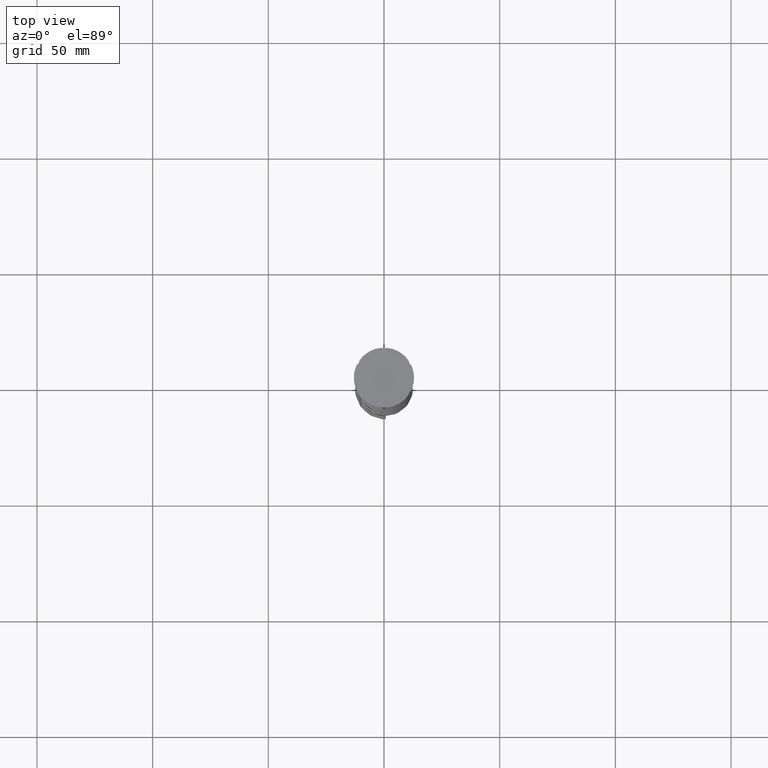
[diagram: clean part render]
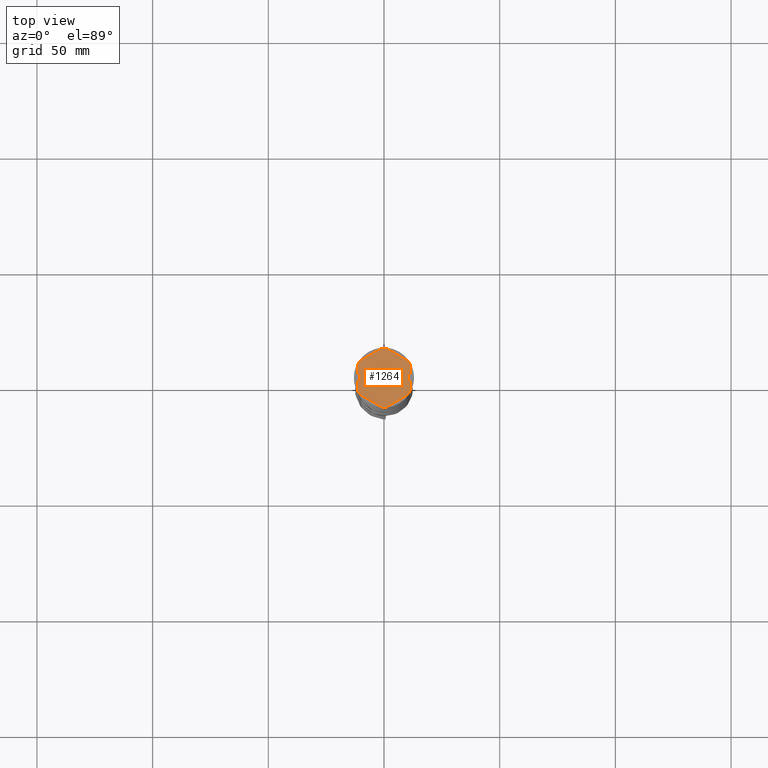
[diagram: same view with one face highlighted and labeled with its STEP entity id]
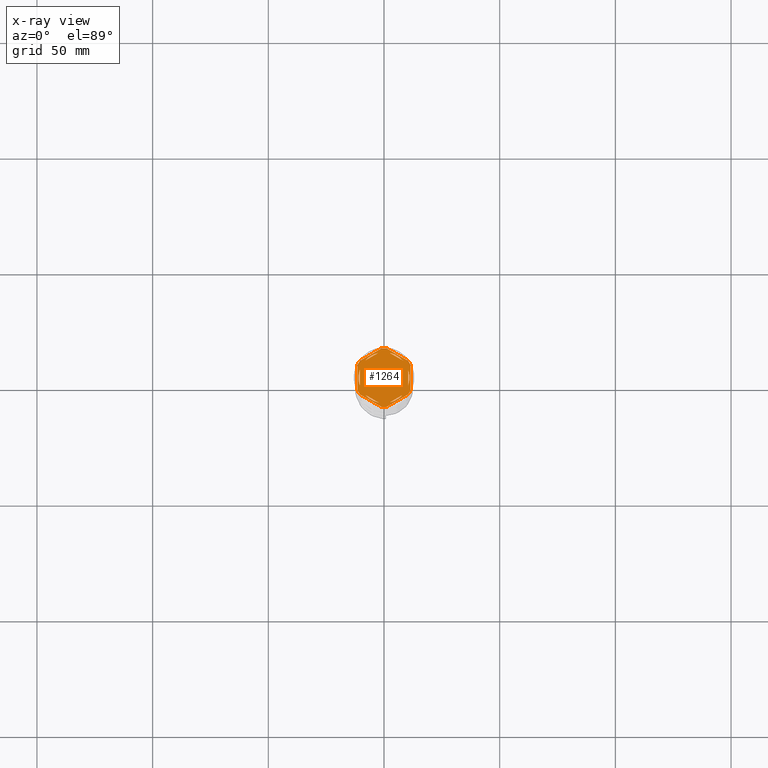
[diagram: x-ray of the same camera — body ghosted, the highlighted face saturated]
A machine part, top view. The second image highlights one B-rep face of the part: STEP entity #1264.
The next image is the same camera in x-ray: the body ghosted, the highlighted face saturated — about 0% of this face is hidden behind the body in this view.
In plain terms, the highlighted planar face has unit normal (0, 0, 1).
Its self-contained STEP definition (entity closure, byte-faithful):
#31 = EDGE_LOOP ( 'NONE', ( #3106, #3212, #1841, #1427, #4323, #4437, #1968, #362, #520, #1990, #393, #3006 ) ) ;
#39 = CARTESIAN_POINT ( 'NONE',  ( 0.000000000000000000, 0.000000000000000000, -1.000000000000000000 ) ) ;
#87 = VECTOR ( 'NONE', #2249, 1000.000000000000000 ) ;
#103 = DIRECTION ( 'NONE',  ( 1.000000000000000000, 0.000000000000000000, 0.000000000000000000 ) ) ;
#151 = CARTESIAN_POINT ( 'NONE',  ( 8.089454172900135021, -7.453907108661109504, -1.000000000000000888 ) ) ;
#167 = ORIENTED_EDGE ( 'NONE', *, *, #3995, .F. ) ;
#200 = LINE ( 'NONE', #949, #1636 ) ;
#222 = CARTESIAN_POINT ( 'NONE',  ( -11.50000000000000000, 6.639528095680691244, -1.000000000000000000 ) ) ;
#235 = CARTESIAN_POINT ( 'NONE',  ( -11.00000000000000000, 0.000000000000000000, -1.000000000000000000 ) ) ;
#237 = VERTEX_POINT ( 'NONE', #1177 ) ;
#239 = EDGE_LOOP ( 'NONE', ( #4219, #4056 ) ) ;
#268 = VERTEX_POINT ( 'NONE', #2385 ) ;
#272 = DIRECTION ( 'NONE',  ( -0.8660254037844387076, -0.4999999999999999445, 0.000000000000000000 ) ) ;
#292 = VERTEX_POINT ( 'NONE', #908 ) ;
#328 = EDGE_CURVE ( 'NONE', #3131, #1717, #2726, .T. ) ;
#336 = VERTEX_POINT ( 'NONE', #2293 ) ;
#338 = AXIS2_PLACEMENT_3D ( 'NONE', #3657, #543, #3912 ) ;
#343 = LINE ( 'NONE', #1724, #1858 ) ;
#348 = AXIS2_PLACEMENT_3D ( 'NONE', #813, #1898, #1825 ) ;
#351 = AXIS2_PLACEMENT_3D ( 'NONE', #2877, #3564, #2147 ) ;
#362 = ORIENTED_EDGE ( 'NONE', *, *, #1473, .F. ) ;
#364 = EDGE_CURVE ( 'NONE', #3429, #1283, #3401, .T. ) ;
#393 = ORIENTED_EDGE ( 'NONE', *, *, #450, .T. ) ;
#433 = CARTESIAN_POINT ( 'NONE',  ( 2.410545827099861871, 10.73262637081210791, -1.000000000000000888 ) ) ;
#440 = CARTESIAN_POINT ( 'NONE',  ( -2.410545827099867200, 10.73262637081210613, -1.000000000000000888 ) ) ;
#450 = EDGE_CURVE ( 'NONE', #3408, #1642, #3049, .T. ) ;
#476 = AXIS2_PLACEMENT_3D ( 'NONE', #508, #874, #1839 ) ;
#478 = CIRCLE ( 'NONE', #4487, 12.69999999999999929 ) ;
#497 = CARTESIAN_POINT ( 'NONE',  ( 10.41690475583121867, -7.264853426459537467, -1.000000000000000000 ) ) ;
#508 = CARTESIAN_POINT ( 'NONE',  ( 0.000000000000000000, 0.000000000000000000, -1.000000000000000000 ) ) ;
#515 = DIRECTION ( 'NONE',  ( 1.306360520641008153E-16, 1.000000000000000000, 0.000000000000000000 ) ) ;
#520 = ORIENTED_EDGE ( 'NONE', *, *, #1176, .T. ) ;
#543 = DIRECTION ( 'NONE',  ( -0.000000000000000000, -0.000000000000000000, -1.000000000000000000 ) ) ;
#555 = EDGE_LOOP ( 'NONE', ( #580, #2738 ) ) ;
#580 = ORIENTED_EDGE ( 'NONE', *, *, #1505, .F. ) ;
#595 = CARTESIAN_POINT ( 'NONE',  ( 0.000000000000000000, 0.000000000000000000, -1.000000000000000000 ) ) ;
#604 = CARTESIAN_POINT ( 'NONE',  ( 0.000000000000000000, 0.000000000000000000, -1.000000000000000000 ) ) ;
#618 = CARTESIAN_POINT ( 'NONE',  ( 0.000000000000000000, 0.000000000000000000, -1.000000000000000000 ) ) ;
#645 = CIRCLE ( 'NONE', #2958, 12.69999999999999929 ) ;
#670 = CARTESIAN_POINT ( 'NONE',  ( 0.000000000000000000, 0.000000000000000000, -1.000000000000000000 ) ) ;
#731 = DIRECTION ( 'NONE',  ( 0.8660254037844385966, 0.4999999999999999445, 0.000000000000000000 ) ) ;
#770 = DIRECTION ( 'NONE',  ( 0.000000000000000000, 0.000000000000000000, 1.000000000000000000 ) ) ;
#809 = CARTESIAN_POINT ( 'NONE',  ( 0.000000000000000000, 0.000000000000000000, -1.000000000000000000 ) ) ;
#813 = CARTESIAN_POINT ( 'NONE',  ( 0.000000000000000000, 0.000000000000000000, -1.000000000000000000 ) ) ;
#826 = EDGE_CURVE ( 'NONE', #1540, #1642, #1843, .T. ) ;
#844 = AXIS2_PLACEMENT_3D ( 'NONE', #39, #3523, #103 ) ;
#854 = FACE_BOUND ( 'NONE', #1821, .T. ) ;
#874 = DIRECTION ( 'NONE',  ( 0.000000000000000000, 0.000000000000000000, 1.000000000000000000 ) ) ;
#908 = CARTESIAN_POINT ( 'NONE',  ( -11.50000000000000000, -5.388877434122992582, -1.000000000000000000 ) ) ;
#922 = AXIS2_PLACEMENT_3D ( 'NONE', #618, #1651, #2334 ) ;
#937 = EDGE_CURVE ( 'NONE', #3408, #2811, #985, .T. ) ;
#939 = CARTESIAN_POINT ( 'NONE',  ( -2.410545827099876082, -10.73262637081210435, -1.000000000000000888 ) ) ;
#949 = CARTESIAN_POINT ( 'NONE',  ( -2.602085213965210642E-15, -12.12435565298214080, -1.000000000000000888 ) ) ;
#984 = VECTOR ( 'NONE', #3094, 999.9999999999998863 ) ;
#985 = CIRCLE ( 'NONE', #3239, 12.69999999999999929 ) ;
#991 = AXIS2_PLACEMENT_3D ( 'NONE', #670, #770, #2150 ) ;
#1030 = VERTEX_POINT ( 'NONE', #3271 ) ;
#1067 = DIRECTION ( 'NONE',  ( -0.8660254037844385966, -0.5000000000000001110, 0.000000000000000000 ) ) ;
#1073 = EDGE_CURVE ( 'NONE', #3703, #292, #2991, .T. ) ;
#1085 = EDGE_LOOP ( 'NONE', ( #2230, #4298 ) ) ;
#1094 = VECTOR ( 'NONE', #1067, 1000.000000000000114 ) ;
#1135 = AXIS2_PLACEMENT_3D ( 'NONE', #2554, #3910, #2148 ) ;
#1170 = CARTESIAN_POINT ( 'NONE',  ( -10.49999999999999822, 3.278719262151000624, -1.000000000000000888 ) ) ;
#1176 = EDGE_CURVE ( 'NONE', #3412, #2811, #3946, .T. ) ;
#1177 = CARTESIAN_POINT ( 'NONE',  ( -10.49999999999999822, -3.278719262151000624, -1.000000000000000888 ) ) ;
#1186 = FACE_BOUND ( 'NONE', #4101, .T. ) ;
#1204 = CARTESIAN_POINT ( 'NONE',  ( -10.49999999999999822, 6.062177826491068622, -1.000000000000000888 ) ) ;
#1264 = ADVANCED_FACE ( 'NONE', ( #2596, #1186, #3604, #2525, #854, #1542, #2939 ), #3625, .T. ) ;
#1280 = CARTESIAN_POINT ( 'NONE',  ( 1.083095244168781557, 12.65373086058254160, -1.000000000000000000 ) ) ;
#1283 = VERTEX_POINT ( 'NONE', #440 ) ;
#1284 = CIRCLE ( 'NONE', #348, 11.00000000000000000 ) ;
#1340 = CARTESIAN_POINT ( 'NONE',  ( 11.49999999999999822, -5.388877434122996135, -1.000000000000000000 ) ) ;
#1350 = VECTOR ( 'NONE', #3970, 1000.000000000000227 ) ;
#1354 = CIRCLE ( 'NONE', #922, 12.69999999999999929 ) ;
#1358 = CIRCLE ( 'NONE', #1940, 11.00000000000000000 ) ;
#1394 = CIRCLE ( 'NONE', #3655, 11.00000000000000000 ) ;
#1414 = AXIS2_PLACEMENT_3D ( 'NONE', #2170, #3448, #1826 ) ;
#1427 = ORIENTED_EDGE ( 'NONE', *, *, #4291, .F. ) ;
#1452 = EDGE_CURVE ( 'NONE', #3011, #237, #3602, .T. ) ;
#1473 = EDGE_CURVE ( 'NONE', #3412, #292, #1633, .T. ) ;
#1505 = EDGE_CURVE ( 'NONE', #1717, #3131, #2006, .T. ) ;
#1526 = LINE ( 'NONE', #3199, #3830 ) ;
#1528 = DIRECTION ( 'NONE',  ( -0.000000000000000000, -0.000000000000000000, -1.000000000000000000 ) ) ;
#1540 = VERTEX_POINT ( 'NONE', #1340 ) ;
#1542 = FACE_BOUND ( 'NONE', #3294, .T. ) ;
#1551 = VECTOR ( 'NONE', #4027, 1000.000000000000000 ) ;
#1633 = CIRCLE ( 'NONE', #1414, 12.69999999999999929 ) ;
#1636 = VECTOR ( 'NONE', #272, 999.9999999999998863 ) ;
#1642 = VERTEX_POINT ( 'NONE', #497 ) ;
#1651 = DIRECTION ( 'NONE',  ( -0.000000000000000000, -0.000000000000000000, -1.000000000000000000 ) ) ;
#1699 = CARTESIAN_POINT ( 'NONE',  ( 2.410545827099865868, -10.73262637081210791, -1.000000000000000888 ) ) ;
#1717 = VERTEX_POINT ( 'NONE', #3278 ) ;
#1724 = CARTESIAN_POINT ( 'NONE',  ( 10.49999999999999289, -6.062177826491073063, -1.000000000000000888 ) ) ;
#1734 = DIRECTION ( 'NONE',  ( 1.000000000000000000, 0.000000000000000000, 0.000000000000000000 ) ) ;
#1775 = VERTEX_POINT ( 'NONE', #3932 ) ;
#1820 = DIRECTION ( 'NONE',  ( 1.000000000000000000, 0.000000000000000000, 0.000000000000000000 ) ) ;
#1821 = EDGE_LOOP ( 'NONE', ( #3578, #3435, #4398 ) ) ;
#1825 = DIRECTION ( 'NONE',  ( 1.000000000000000000, 0.000000000000000000, 0.000000000000000000 ) ) ;
#1826 = DIRECTION ( 'NONE',  ( 1.000000000000000000, 7.105427357601001859E-15, 0.000000000000000000 ) ) ;
#1839 = DIRECTION ( 'NONE',  ( 1.000000000000000000, 0.000000000000000000, -0.000000000000000000 ) ) ;
#1841 = ORIENTED_EDGE ( 'NONE', *, *, #4183, .T. ) ;
#1843 = CIRCLE ( 'NONE', #338, 12.69999999999999929 ) ;
#1844 = EDGE_CURVE ( 'NONE', #3703, #1775, #1354, .T. ) ;
#1847 = DIRECTION ( 'NONE',  ( -0.8660254037844388186, 0.4999999999999997224, 0.000000000000000000 ) ) ;
#1858 = VECTOR ( 'NONE', #3116, 1000.000000000000000 ) ;
#1898 = DIRECTION ( 'NONE',  ( 0.000000000000000000, 0.000000000000000000, 1.000000000000000000 ) ) ;
#1940 = AXIS2_PLACEMENT_3D ( 'NONE', #2764, #4152, #1734 ) ;
#1947 = CARTESIAN_POINT ( 'NONE',  ( -1.083095244168783333, 12.65373086058254160, -1.000000000000000000 ) ) ;
#1968 = ORIENTED_EDGE ( 'NONE', *, *, #1073, .T. ) ;
#1990 = ORIENTED_EDGE ( 'NONE', *, *, #937, .F. ) ;
#2006 = CIRCLE ( 'NONE', #844, 11.00000000000000000 ) ;
#2025 = CARTESIAN_POINT ( 'NONE',  ( 10.49999999999999467, 6.062177826491072175, -1.000000000000000888 ) ) ;
#2041 = CARTESIAN_POINT ( 'NONE',  ( -8.089454172900135021, 7.453907108661106840, -1.000000000000000888 ) ) ;
#2147 = DIRECTION ( 'NONE',  ( 1.000000000000000000, 0.000000000000000000, 0.000000000000000000 ) ) ;
#2148 = DIRECTION ( 'NONE',  ( 1.000000000000000000, 0.000000000000000000, 0.000000000000000000 ) ) ;
#2150 = DIRECTION ( 'NONE',  ( 1.000000000000000000, 0.000000000000000000, 0.000000000000000000 ) ) ;
#2163 = VERTEX_POINT ( 'NONE', #1280 ) ;
#2170 = CARTESIAN_POINT ( 'NONE',  ( 0.000000000000000000, 0.000000000000000000, -1.000000000000000000 ) ) ;
#2203 = VERTEX_POINT ( 'NONE', #3951 ) ;
#2230 = ORIENTED_EDGE ( 'NONE', *, *, #3050, .F. ) ;
#2249 = DIRECTION ( 'NONE',  ( 0.000000000000000000, 1.000000000000000000, 0.000000000000000000 ) ) ;
#2264 = EDGE_CURVE ( 'NONE', #1540, #4493, #2876, .T. ) ;
#2293 = CARTESIAN_POINT ( 'NONE',  ( -8.089454172900133244, -7.453907108661111280, -1.000000000000000888 ) ) ;
#2319 = VERTEX_POINT ( 'NONE', #1947 ) ;
#2334 = DIRECTION ( 'NONE',  ( 1.000000000000000000, 0.000000000000000000, 0.000000000000000000 ) ) ;
#2363 = DIRECTION ( 'NONE',  ( 1.000000000000000000, 0.000000000000000000, 0.000000000000000000 ) ) ;
#2385 = CARTESIAN_POINT ( 'NONE',  ( 10.41690475583121156, 7.264853426459550789, -1.000000000000000000 ) ) ;
#2525 = FACE_BOUND ( 'NONE', #1085, .T. ) ;
#2554 = CARTESIAN_POINT ( 'NONE',  ( 0.000000000000000000, 0.000000000000000000, -1.000000000000000000 ) ) ;
#2578 = DIRECTION ( 'NONE',  ( -0.8660254037844384856, 0.5000000000000002220, 0.000000000000000000 ) ) ;
#2580 = CARTESIAN_POINT ( 'NONE',  ( -11.50000000000000000, 5.388877434122992582, -1.000000000000000000 ) ) ;
#2596 = FACE_BOUND ( 'NONE', #555, .T. ) ;
#2647 = CARTESIAN_POINT ( 'NONE',  ( 11.49999999999999822, 5.388877434122992582, -1.000000000000000000 ) ) ;
#2686 = EDGE_CURVE ( 'NONE', #3066, #3623, #1358, .T. ) ;
#2726 = LINE ( 'NONE', #2025, #984 ) ;
#2738 = ORIENTED_EDGE ( 'NONE', *, *, #328, .F. ) ;
#2764 = CARTESIAN_POINT ( 'NONE',  ( 0.000000000000000000, 0.000000000000000000, -1.000000000000000000 ) ) ;
#2811 = VERTEX_POINT ( 'NONE', #4367 ) ;
#2868 = EDGE_CURVE ( 'NONE', #237, #3644, #4318, .T. ) ;
#2876 = LINE ( 'NONE', #3630, #3976 ) ;
#2877 = CARTESIAN_POINT ( 'NONE',  ( 0.000000000000000000, 0.000000000000000000, -1.000000000000000000 ) ) ;
#2885 = CIRCLE ( 'NONE', #351, 11.00000000000000000 ) ;
#2900 = CARTESIAN_POINT ( 'NONE',  ( -10.49999999999999822, -6.062177826491068622, -1.000000000000000888 ) ) ;
#2912 = VERTEX_POINT ( 'NONE', #939 ) ;
#2922 = CARTESIAN_POINT ( 'NONE',  ( 0.000000000000000000, 0.000000000000000000, -1.000000000000000000 ) ) ;
#2939 = FACE_OUTER_BOUND ( 'NONE', #31, .T. ) ;
#2958 = AXIS2_PLACEMENT_3D ( 'NONE', #2922, #1528, #4336 ) ;
#2991 = LINE ( 'NONE', #222, #4185 ) ;
#3006 = ORIENTED_EDGE ( 'NONE', *, *, #826, .F. ) ;
#3011 = VERTEX_POINT ( 'NONE', #235 ) ;
#3016 = DIRECTION ( 'NONE',  ( -0.000000000000000000, -0.000000000000000000, -1.000000000000000000 ) ) ;
#3029 = CARTESIAN_POINT ( 'NONE',  ( -1.734723475976807094E-15, 12.12435565298214080, -1.000000000000000888 ) ) ;
#3049 = LINE ( 'NONE', #4436, #3598 ) ;
#3050 = EDGE_CURVE ( 'NONE', #336, #2912, #1394, .T. ) ;
#3066 = VERTEX_POINT ( 'NONE', #1699 ) ;
#3092 = CARTESIAN_POINT ( 'NONE',  ( -10.41690475583121334, -7.264853426459548125, -1.000000000000000000 ) ) ;
#3094 = DIRECTION ( 'NONE',  ( 0.8660254037844387076, -0.4999999999999999445, 0.000000000000000000 ) ) ;
#3103 = CIRCLE ( 'NONE', #1135, 11.00000000000000000 ) ;
#3106 = ORIENTED_EDGE ( 'NONE', *, *, #2264, .T. ) ;
#3116 = DIRECTION ( 'NONE',  ( -1.430775808321104180E-16, -1.000000000000000000, 0.000000000000000000 ) ) ;
#3131 = VERTEX_POINT ( 'NONE', #433 ) ;
#3199 = CARTESIAN_POINT ( 'NONE',  ( 11.50000000000000000, 6.639528095680698350, -1.000000000000000000 ) ) ;
#3212 = ORIENTED_EDGE ( 'NONE', *, *, #3659, .F. ) ;
#3239 = AXIS2_PLACEMENT_3D ( 'NONE', #809, #3562, #1820 ) ;
#3271 = CARTESIAN_POINT ( 'NONE',  ( 10.49999999999999467, 3.278719262151012170, -1.000000000000000888 ) ) ;
#3278 = CARTESIAN_POINT ( 'NONE',  ( 8.089454172900138573, 7.453907108661105063, -1.000000000000000888 ) ) ;
#3280 = ORIENTED_EDGE ( 'NONE', *, *, #364, .F. ) ;
#3294 = EDGE_LOOP ( 'NONE', ( #4371, #3280 ) ) ;
#3364 = DIRECTION ( 'NONE',  ( 0.000000000000000000, -1.000000000000000000, 0.000000000000000000 ) ) ;
#3401 = LINE ( 'NONE', #3029, #1551 ) ;
#3408 = VERTEX_POINT ( 'NONE', #3885 ) ;
#3412 = VERTEX_POINT ( 'NONE', #3092 ) ;
#3429 = VERTEX_POINT ( 'NONE', #2041 ) ;
#3435 = ORIENTED_EDGE ( 'NONE', *, *, #2868, .F. ) ;
#3448 = DIRECTION ( 'NONE',  ( -0.000000000000000000, -0.000000000000000000, -1.000000000000000000 ) ) ;
#3498 = EDGE_CURVE ( 'NONE', #2319, #1775, #4163, .T. ) ;
#3523 = DIRECTION ( 'NONE',  ( 0.000000000000000000, 0.000000000000000000, 1.000000000000000000 ) ) ;
#3562 = DIRECTION ( 'NONE',  ( -0.000000000000000000, -0.000000000000000000, -1.000000000000000000 ) ) ;
#3564 = DIRECTION ( 'NONE',  ( 0.000000000000000000, 0.000000000000000000, 1.000000000000000000 ) ) ;
#3578 = ORIENTED_EDGE ( 'NONE', *, *, #3723, .F. ) ;
#3598 = VECTOR ( 'NONE', #731, 1000.000000000000114 ) ;
#3602 = CIRCLE ( 'NONE', #991, 11.00000000000000000 ) ;
#3604 = FACE_BOUND ( 'NONE', #239, .T. ) ;
#3623 = VERTEX_POINT ( 'NONE', #151 ) ;
#3625 = PLANE ( 'NONE',  #476 ) ;
#3626 = EDGE_CURVE ( 'NONE', #2203, #1030, #1284, .T. ) ;
#3630 = CARTESIAN_POINT ( 'NONE',  ( 11.49999999999999822, -6.639528095680694797, -1.000000000000000000 ) ) ;
#3644 = VERTEX_POINT ( 'NONE', #1170 ) ;
#3655 = AXIS2_PLACEMENT_3D ( 'NONE', #604, #3786, #2363 ) ;
#3657 = CARTESIAN_POINT ( 'NONE',  ( 0.000000000000000000, 0.000000000000000000, -1.000000000000000000 ) ) ;
#3659 = EDGE_CURVE ( 'NONE', #268, #4493, #645, .T. ) ;
#3703 = VERTEX_POINT ( 'NONE', #2580 ) ;
#3723 = EDGE_CURVE ( 'NONE', #3644, #3011, #3103, .T. ) ;
#3786 = DIRECTION ( 'NONE',  ( 0.000000000000000000, 0.000000000000000000, 1.000000000000000000 ) ) ;
#3830 = VECTOR ( 'NONE', #1847, 1000.000000000000000 ) ;
#3884 = LINE ( 'NONE', #2900, #4039 ) ;
#3885 = CARTESIAN_POINT ( 'NONE',  ( 1.083095244168774673, -12.65373086058253982, -1.000000000000000000 ) ) ;
#3910 = DIRECTION ( 'NONE',  ( 0.000000000000000000, 0.000000000000000000, 1.000000000000000000 ) ) ;
#3912 = DIRECTION ( 'NONE',  ( 1.000000000000000000, 0.000000000000000000, 0.000000000000000000 ) ) ;
#3932 = CARTESIAN_POINT ( 'NONE',  ( -10.41690475583121689, 7.264853426459546348, -1.000000000000000000 ) ) ;
#3946 = LINE ( 'NONE', #4235, #1350 ) ;
#3951 = CARTESIAN_POINT ( 'NONE',  ( 10.49999999999999467, -3.278719262151014835, -1.000000000000000888 ) ) ;
#3970 = DIRECTION ( 'NONE',  ( 0.8660254037844387076, -0.4999999999999997780, 0.000000000000000000 ) ) ;
#3976 = VECTOR ( 'NONE', #515, 1000.000000000000000 ) ;
#3995 = EDGE_CURVE ( 'NONE', #1030, #2203, #343, .T. ) ;
#4027 = DIRECTION ( 'NONE',  ( 0.8660254037844385966, 0.5000000000000001110, -0.000000000000000000 ) ) ;
#4039 = VECTOR ( 'NONE', #2578, 1000.000000000000000 ) ;
#4056 = ORIENTED_EDGE ( 'NONE', *, *, #4350, .F. ) ;
#4083 = EDGE_CURVE ( 'NONE', #2912, #336, #3884, .T. ) ;
#4101 = EDGE_LOOP ( 'NONE', ( #4386, #167 ) ) ;
#4103 = EDGE_CURVE ( 'NONE', #1283, #3429, #2885, .T. ) ;
#4152 = DIRECTION ( 'NONE',  ( 0.000000000000000000, 0.000000000000000000, 1.000000000000000000 ) ) ;
#4163 = LINE ( 'NONE', #4181, #1094 ) ;
#4181 = CARTESIAN_POINT ( 'NONE',  ( 0.000000000000000000, 13.27905619136138959, -1.000000000000000000 ) ) ;
#4183 = EDGE_CURVE ( 'NONE', #268, #2163, #1526, .T. ) ;
#4185 = VECTOR ( 'NONE', #3364, 1000.000000000000000 ) ;
#4219 = ORIENTED_EDGE ( 'NONE', *, *, #2686, .F. ) ;
#4235 = CARTESIAN_POINT ( 'NONE',  ( -11.50000000000000000, -6.639528095680696573, -1.000000000000000000 ) ) ;
#4291 = EDGE_CURVE ( 'NONE', #2319, #2163, #478, .T. ) ;
#4298 = ORIENTED_EDGE ( 'NONE', *, *, #4083, .F. ) ;
#4318 = LINE ( 'NONE', #1204, #87 ) ;
#4323 = ORIENTED_EDGE ( 'NONE', *, *, #3498, .T. ) ;
#4334 = DIRECTION ( 'NONE',  ( 1.000000000000000000, 1.243449787580175325E-14, 0.000000000000000000 ) ) ;
#4336 = DIRECTION ( 'NONE',  ( 1.000000000000000000, -1.776356839400250465E-14, 0.000000000000000000 ) ) ;
#4350 = EDGE_CURVE ( 'NONE', #3623, #3066, #200, .T. ) ;
#4367 = CARTESIAN_POINT ( 'NONE',  ( -1.083095244168779780, -12.65373086058253982, -1.000000000000000000 ) ) ;
#4371 = ORIENTED_EDGE ( 'NONE', *, *, #4103, .F. ) ;
#4386 = ORIENTED_EDGE ( 'NONE', *, *, #3626, .F. ) ;
#4398 = ORIENTED_EDGE ( 'NONE', *, *, #1452, .F. ) ;
#4436 = CARTESIAN_POINT ( 'NONE',  ( 5.612359739892467248E-18, -13.27905619136138959, -1.000000000000000000 ) ) ;
#4437 = ORIENTED_EDGE ( 'NONE', *, *, #1844, .F. ) ;
#4487 = AXIS2_PLACEMENT_3D ( 'NONE', #595, #3016, #4334 ) ;
#4493 = VERTEX_POINT ( 'NONE', #2647 ) ;